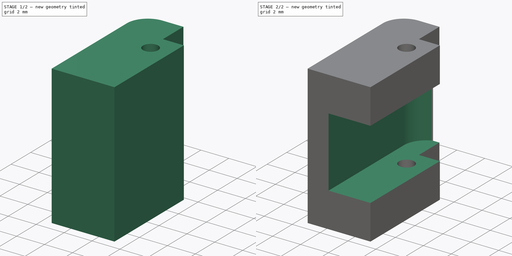
[diagram: build sequence overview — one tinted view per stage of 2, left to right]
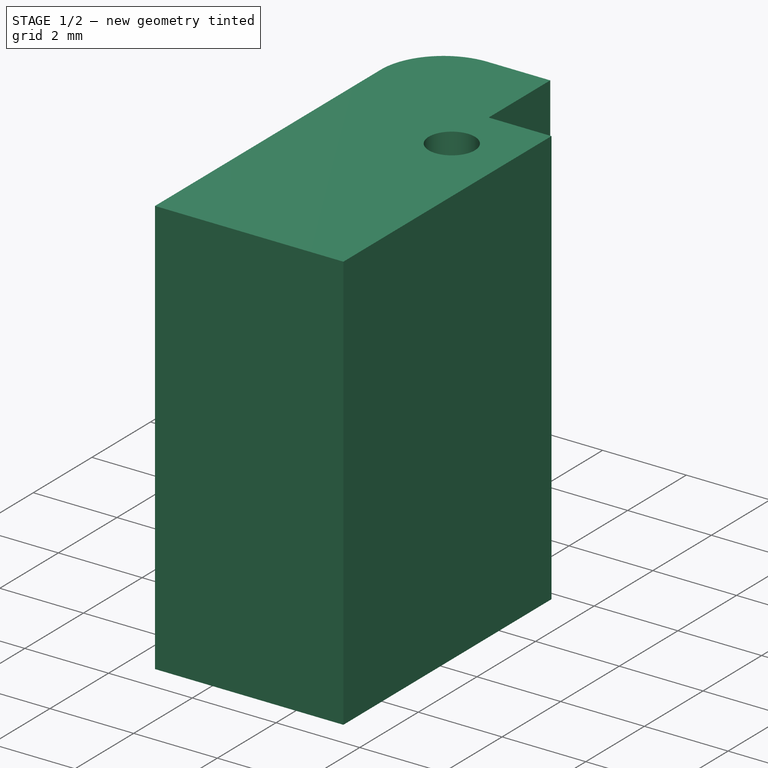
[diagram: stage 1 of 2 — iso view after this stage's code; geometry added in this stage tinted green]
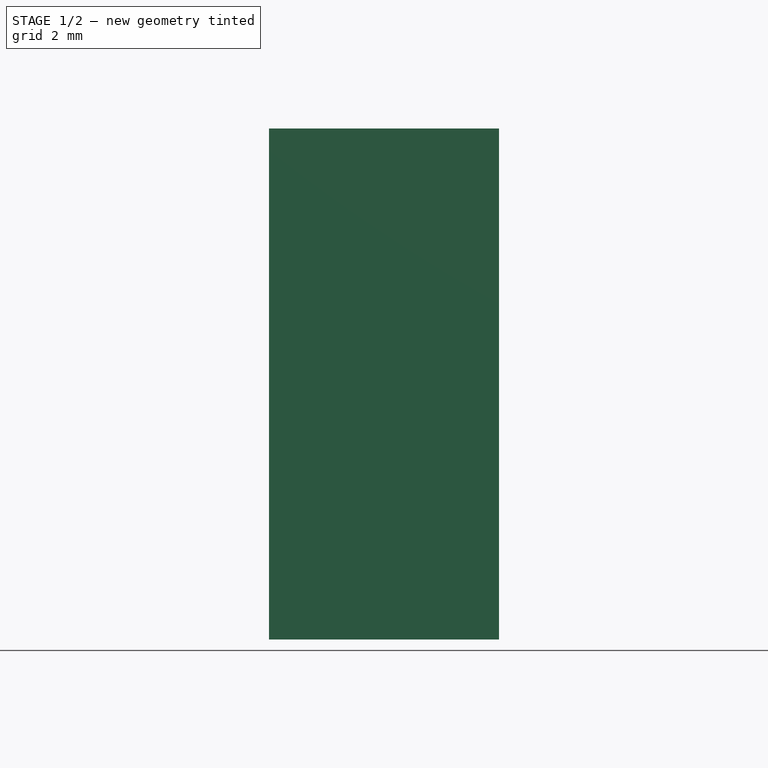
[diagram: stage 1 of 2 — front view after this stage's code; geometry added in this stage tinted green]
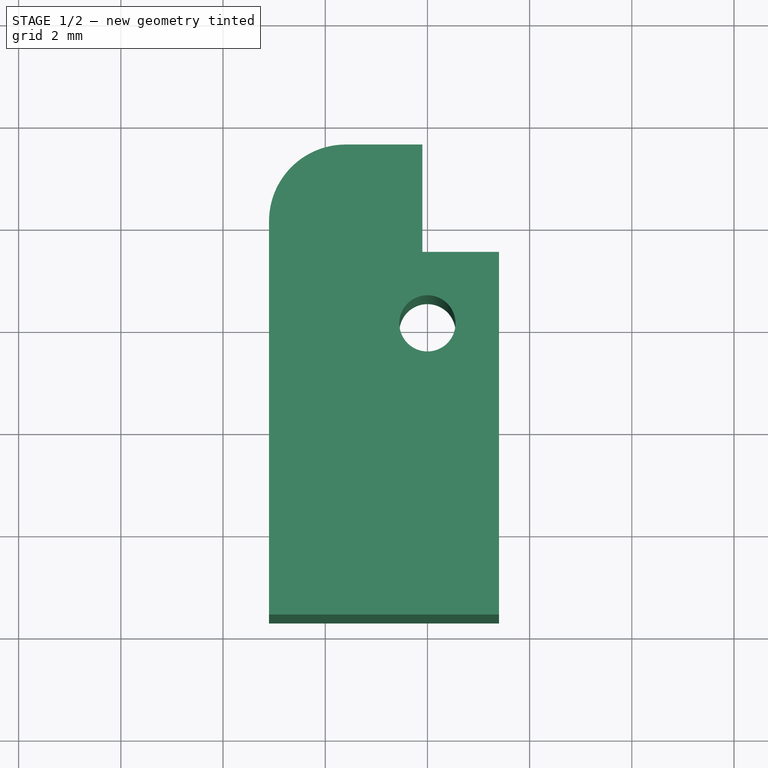
[diagram: stage 1 of 2 — top view after this stage's code; geometry added in this stage tinted green]
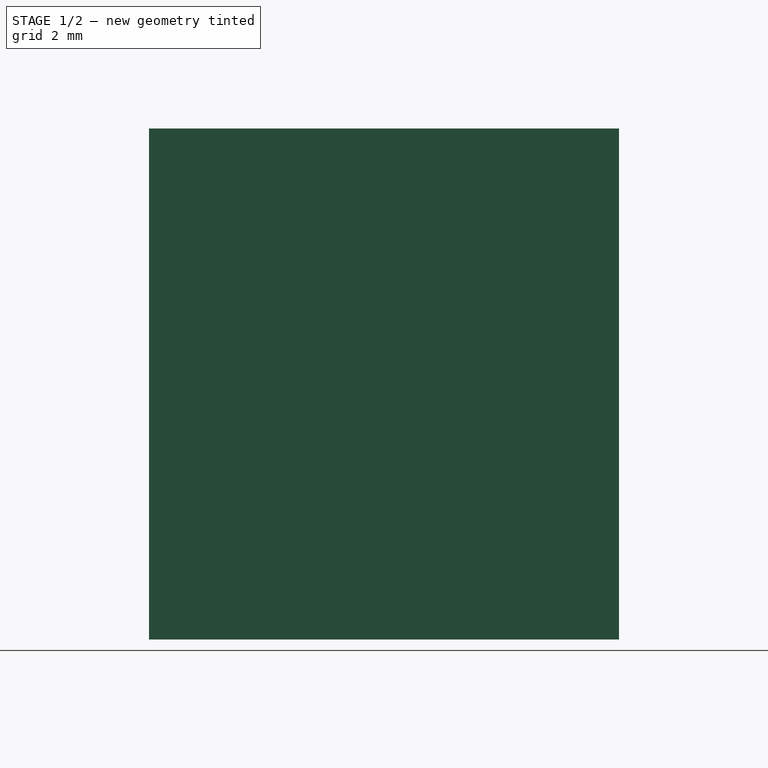
[diagram: stage 1 of 2 — right view after this stage's code; geometry added in this stage tinted green]
FCSTD DOCUMENT  (FreeCAD 1.1R39029 (Git))
Label: template_for_lens_edging_machine-hinge_lock
License: All rights reserved
LicenseURL: http://en.wikipedia.org/wiki/All_rights_reserved
objects: Sketcher::SketchObject×1, PartDesign::Pad×1, PartDesign::Pocket×1, PartDesign::Body×1, App::Part×1
note: 9 computed .brp shape members not serialized (recipe doc carries the construction recipe); baked Part::Feature solids carry a one-line shape summary decoded from their .brp

FEATURE [Sketcher::SketchObject] Sketch  label="Master sketch"
  ArcFitTolerance = 1e-06
  AttachmentSupport = -> [XY_Plane001]
  FullyConstrained = true
  MakeInternals = false
  MapMode = 5
  sketch-geometry (17):
    g0: Circle CenterX=3e-16 CenterY=0 CenterZ=0 NormalX=0 NormalY=0 NormalZ=1 AngleXU=0 Radius=0.55
    g1: Circle [constr] CenterX=3e-16 CenterY=0 CenterZ=0 NormalX=0 NormalY=0 NormalZ=1 AngleXU=0 Radius=1.5
    g2: LineSegment StartX=-0.556776 StartY=3.5 StartZ=0 EndX=-0.1 EndY=3.5 EndZ=0
    g3: LineSegment StartX=-1.6 StartY=2 StartZ=0 EndX=-1.6 EndY=-5.7 EndZ=0
    g4: LineSegment StartX=1.4 StartY=1.4 StartZ=0 EndX=1.4 EndY=-5.7 EndZ=0
    g5: LineSegment StartX=-1.6 StartY=-5.7 StartZ=0 EndX=1.4 EndY=-5.7 EndZ=0
    g6: LineSegment StartX=-1.6 StartY=-5.7 StartZ=0 EndX=-3.1 EndY=-5.7 EndZ=0
    g7: LineSegment StartX=-3.1 StartY=-5.7 StartZ=0 EndX=-3.1 EndY=2 EndZ=0
    g8: ArcOfCircle CenterX=-1.6 CenterY=2 CenterZ=0 NormalX=0 NormalY=0 NormalZ=1 AngleXU=0 Radius=1.5 StartAngle=1.5708 EndAngle=3.14159
    g9: LineSegment StartX=-1.6 StartY=3.5 StartZ=0 EndX=-0.556776 EndY=3.5 EndZ=0
    g10: LineSegment [constr] StartX=2e-16 StartY=1.5 StartZ=0 EndX=1.5 EndY=1.5 EndZ=0
    g11: LineSegment [constr] StartX=1.5 StartY=1.5 StartZ=0 EndX=1.5 EndY=-5.7 EndZ=0
    g12: LineSegment [constr] StartX=-1.5 StartY=-5.7 StartZ=0 EndX=-1.5 EndY=2 EndZ=0
    g13: ArcOfCircle [constr] CenterX=3e-16 CenterY=2 CenterZ=0 NormalX=0 NormalY=0 NormalZ=1 AngleXU=0 Radius=1.5 StartAngle=1.5708 EndAngle=3.14159
    g14: ArcOfCircle CenterX=3e-16 CenterY=2 CenterZ=0 NormalX=0 NormalY=0 NormalZ=1 AngleXU=0 Radius=1.6 StartAngle=1.92622 EndAngle=3.14159
    g15: LineSegment StartX=-0.1 StartY=1.4 StartZ=0 EndX=1.4 EndY=1.4 EndZ=0
    g16: LineSegment StartX=-0.1 StartY=3.5 StartZ=0 EndX=-0.1 EndY=1.4 EndZ=0
  constraints (52):
    c: Coincident(g0,g-1)
    c: Diameter(g0) = 1.1
    c: Coincident(g1,g0)
    c: Diameter(g1) = 3
    c: Horizontal(g2)
    c: Vertical(g3)
    c: Vertical(g4)
    c: Coincident(g5,g3)
    c: Coincident(g5,g4)
    c: Horizontal(g5)
    c: Distance(g5,g2) = 9.2
    c: Coincident(g6,g3)
    c: Horizontal(g6)
    c: Coincident(g7,g6)
    c: Vertical(g7)
    c: Coincident(g8,g7)
    c: Horizontal(g7,g8)
    c: Vertical(g8,g8)
    c: Coincident(g9,g8)
    c: Distance(g3,g7) = 1.5
    c: Tangent(g10,g1) = 1.5708
    c: Horizontal(g10)
    c: Vertical(g11)
    c: Tangent(g11,g1)
    c: PointOnObject(g11,g5)
    c: PointOnObject(g12,g5)
    c: Vertical(g12)
    c: Horizontal(g8,g12)
    c: Tangent(g12,g1)
    c: Distance(g12,g3) = 0.1
    c: Coincident(g13,g12)
    c: Horizontal(g12,g13)
    c: Vertical(g13,g13)
    c: Horizontal(g9)
    c: PointOnObject(g13,g9)
    c: Coincident(g14,g13)
    c: Coincident(g14,g3)
    c: Vertical(g13,g0)
    c: Horizontal(g3,g13)
    c: Coincident(g9,g14)
    c: Coincident(g2,g9)
    c: Distance(g2,g10) = 2
    c: Coincident(g11,g10)
    c: Distance(g4,g11) = 0.1
    c: Coincident(g15,g4)
    c: Horizontal(g15)
    c: Distance(g10,g15) = 0.1
    c: Vertical(g16)
    c: Coincident(g16,g15)
    c: PointOnObject(g2,g16)
    c: Distance(g13,g16) = 0.1
    c: PointOnObject(g16,g2)
FEATURE [PartDesign::Pad] Pad  label="Main body"
  Direction = (0,0,1)
  Length = 10
  Length2 = 10
  Midplane = true
  Profile = -> Sketch [Edge7,Edge8,Edge9,Edge12,Edge2,Edge3,Edge4,Edge5,Edge6,Edge1]
  ReferenceAxis = -> Sketch [N_Axis]
  Suppressed = false
  Type = 0
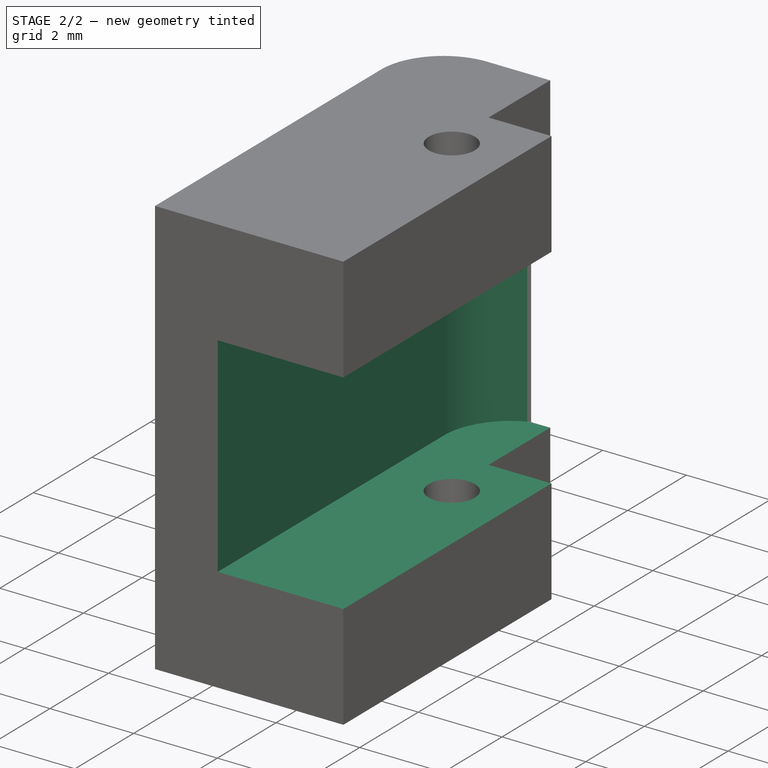
[diagram: stage 2 of 2 — iso view after this stage's code; geometry added in this stage tinted green]
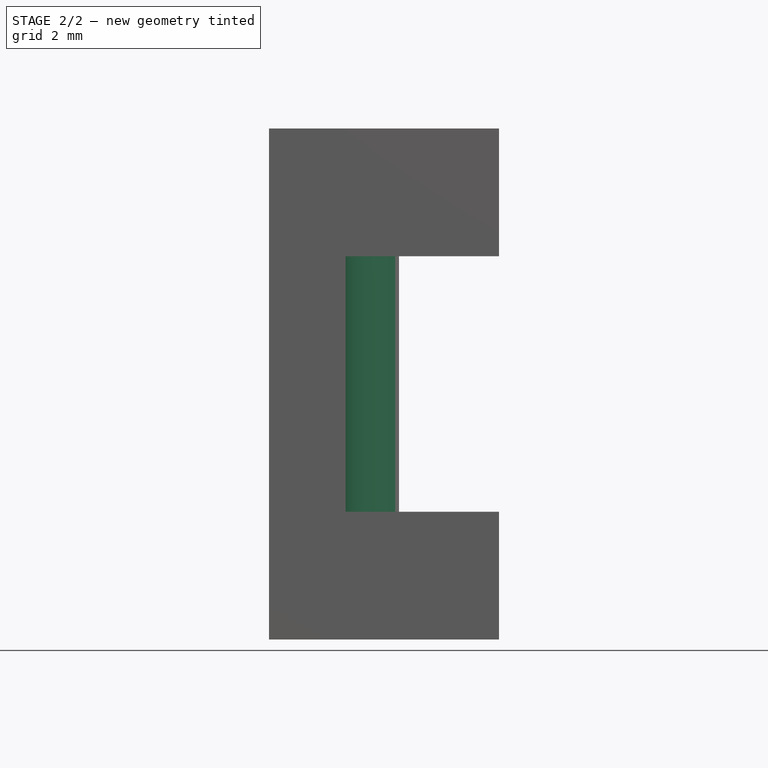
[diagram: stage 2 of 2 — front view after this stage's code; geometry added in this stage tinted green]
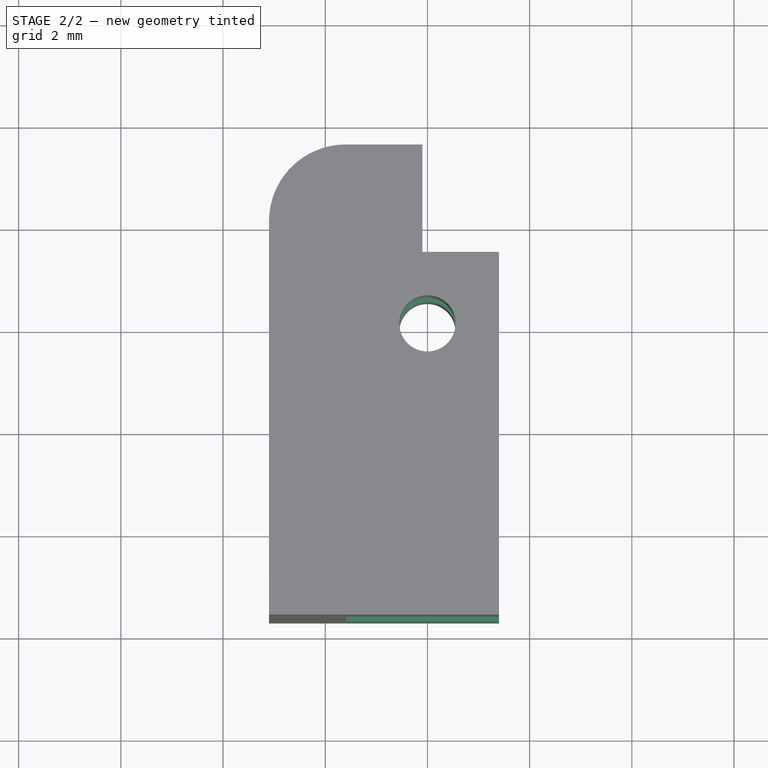
[diagram: stage 2 of 2 — top view after this stage's code; geometry added in this stage tinted green]
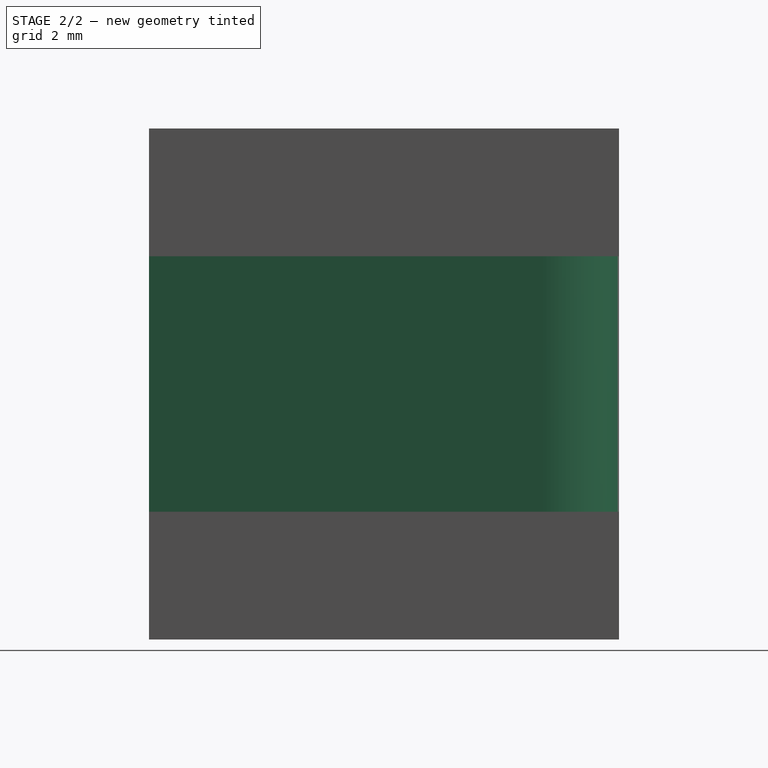
[diagram: stage 2 of 2 — right view after this stage's code; geometry added in this stage tinted green]
FEATURE [PartDesign::Pocket] Pocket  label="Slot for the hinge"
  BaseFeature = -> Pad
  Direction = (0,0,-1)
  Length = 5
  Length2 = 5
  Midplane = true
  Profile = -> Sketch [Edge7,Edge10,Edge11,Edge3,Edge4,Edge5,Edge6]
  ReferenceAxis = -> Sketch [N_Axis]
  Refine = true
  Suppressed = false
  Type = 0
FEATURE [PartDesign::Body] Body
  AllowCompound = false
  Group = -> [Sketch,Pad,Pocket]
  Origin = -> Origin001
  Tip = -> Pocket
FEATURE [App::Part] Part
  Group = -> [Body]
  Origin = -> Origin
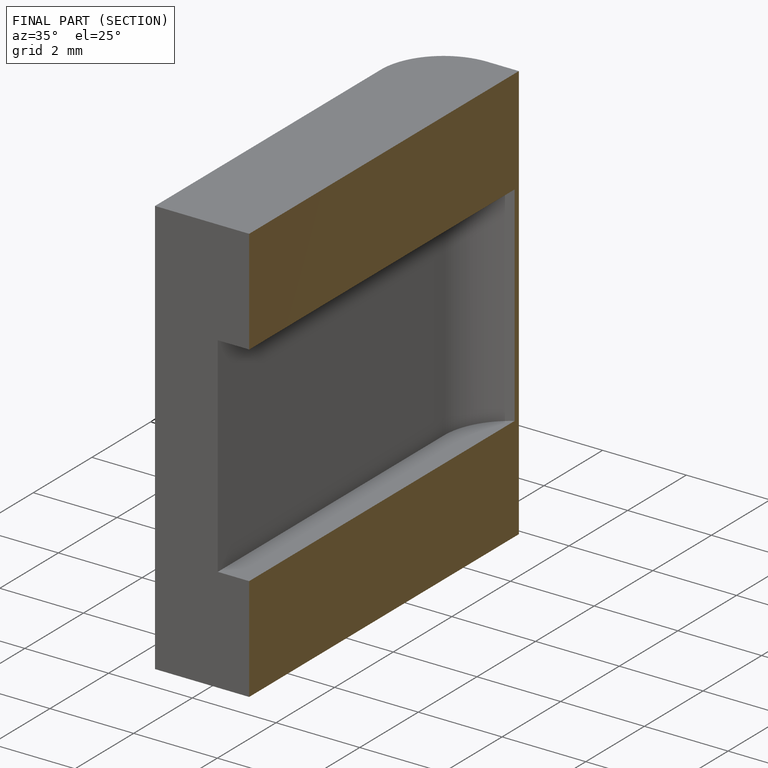
[diagram: finished part — half-section view (interior)]
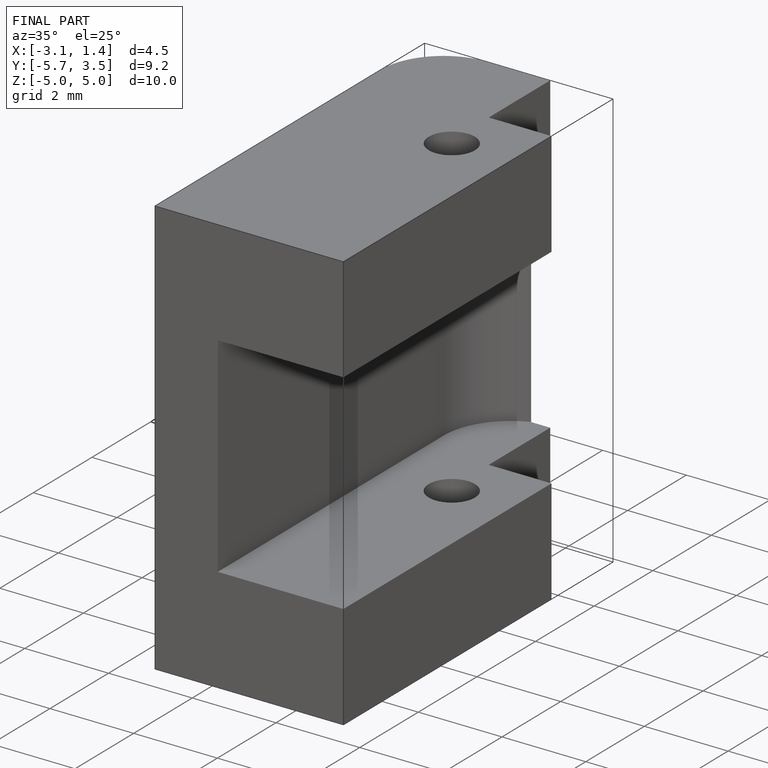
[diagram: finished part — iso view with bounding-box wireframe]
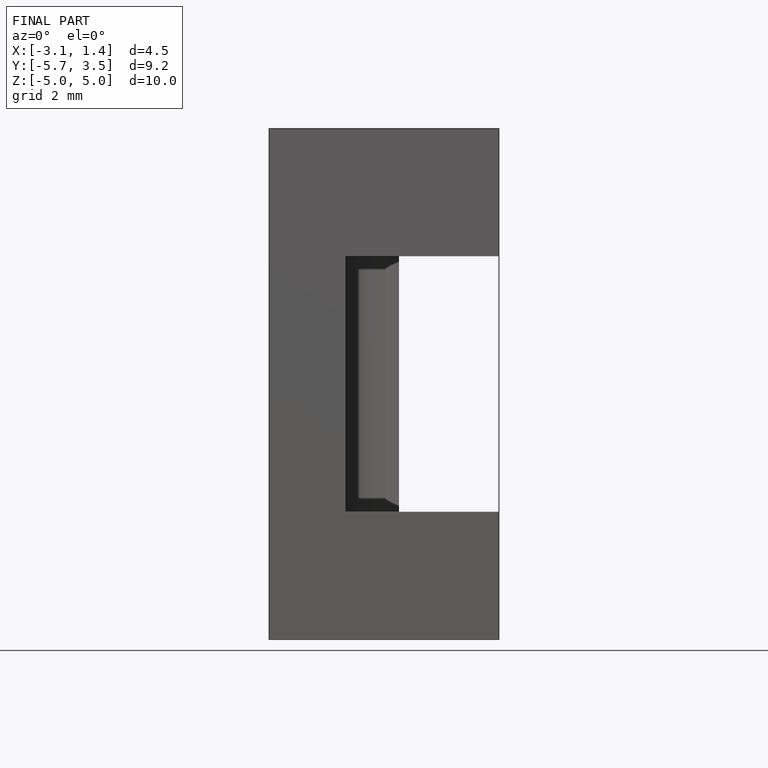
[diagram: finished part — front view with bounding-box wireframe]
